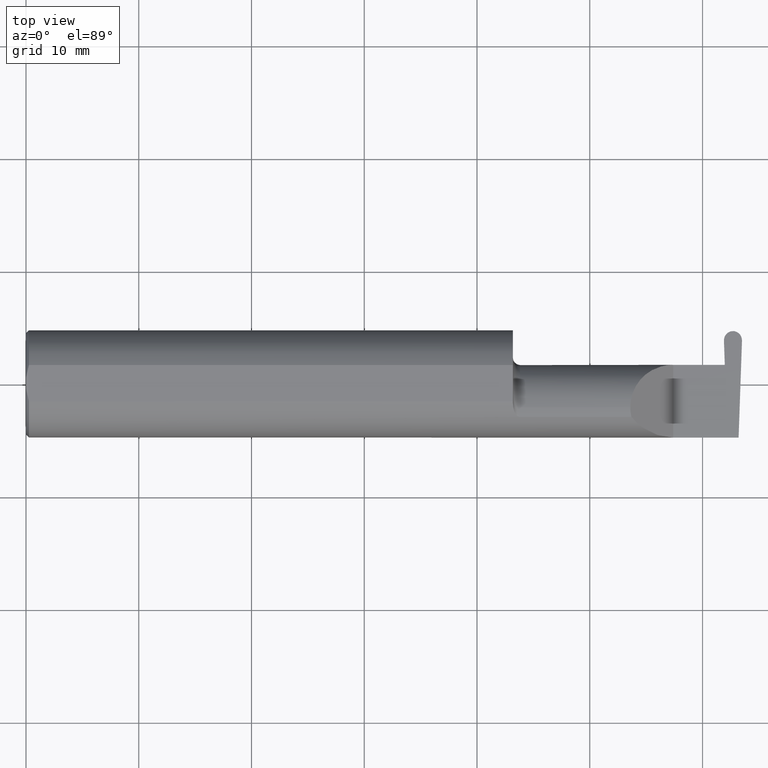
[diagram: clean part render]
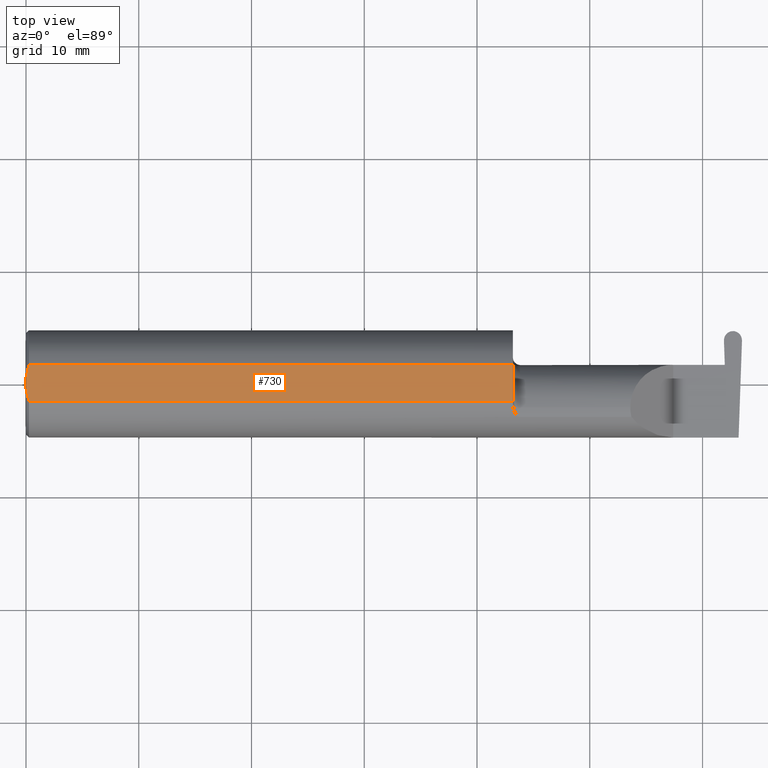
[diagram: same view with one face highlighted and labeled with its STEP entity id]
A machine part, top view. The second image highlights one B-rep face of the part: STEP entity #730.
In plain terms, the highlighted planar face has unit normal (0, 0, 1).
Its self-contained STEP definition (entity closure, byte-faithful):
#25 = DIRECTION ( 'NONE',  ( -0.000000000000000000, 1.000000000000000000, -0.000000000000000000 ) ) ;
#30 = CARTESIAN_POINT ( 'NONE',  ( 0.000000000000000000, 0.06325108694718235836, 0.1763499999999999235 ) ) ;
#60 = CARTESIAN_POINT ( 'NONE',  ( 0.01000000000000013205, -0.06325108694718235836, 0.1763499999999999235 ) ) ;
#68 = CARTESIAN_POINT ( 'NONE',  ( 1.699999999999999956, -0.06325108694718287183, 0.1763499999999999235 ) ) ;
#81 = AXIS2_PLACEMENT_3D ( 'NONE', #732, #528, #797 ) ;
#89 = LINE ( 'NONE', #30, #206 ) ;
#102 = EDGE_CURVE ( 'NONE', #233, #485, #704, .T. ) ;
#114 = CARTESIAN_POINT ( 'NONE',  ( 0.000000000000000000, -0.01880691362238934641, 0.1763499999999999235 ) ) ;
#149 = CARTESIAN_POINT ( 'NONE',  ( 1.699999999999999956, 0.1873499999999998500, 0.1763499999999999235 ) ) ;
#161 = EDGE_LOOP ( 'NONE', ( #312, #499, #648, #778, #592, #343 ) ) ;
#162 = CARTESIAN_POINT ( 'NONE',  ( 0.01000000000000013205, 0.06325108694718235836, 0.1763499999999999235 ) ) ;
#172 = FACE_OUTER_BOUND ( 'NONE', #161, .T. ) ;
#206 = VECTOR ( 'NONE', #642, 39.37007874015748143 ) ;
#217 = EDGE_CURVE ( 'NONE', #585, #513, #89, .T. ) ;
#222 = CARTESIAN_POINT ( 'NONE',  ( 0.001616639753276021213, 0.03405189565400638246, 0.1763499999999999235 ) ) ;
#233 = VERTEX_POINT ( 'NONE', #518 ) ;
#241 = EDGE_CURVE ( 'NONE', #485, #513, #643, .T. ) ;
#245 = CARTESIAN_POINT ( 'NONE',  ( 0.001595548104417008695, -0.03385300050298640367, 0.1763499999999999235 ) ) ;
#260 = VECTOR ( 'NONE', #395, 39.37007874015748143 ) ;
#271 = LINE ( 'NONE', #149, #647 ) ;
#275 = DIRECTION ( 'NONE',  ( 0.000000000000000000, 1.000000000000000000, 0.000000000000000000 ) ) ;
#298 = EDGE_CURVE ( 'NONE', #738, #233, #309, .T. ) ;
#302 = CARTESIAN_POINT ( 'NONE',  ( 0.01000000000000013205, -0.06325108694718235836, 0.1763499999999999235 ) ) ;
#309 = B_SPLINE_CURVE_WITH_KNOTS ( 'NONE', 3,
 ( #60, #412, #245, #114 ),
 .UNSPECIFIED., .F., .F.,
 ( 4, 4 ),
 ( 0.009771445421851331775, 0.01092787937989104369 ),
 .UNSPECIFIED. ) ;
#312 = ORIENTED_EDGE ( 'NONE', *, *, #550, .T. ) ;
#313 = CARTESIAN_POINT ( 'NONE',  ( 0.000000000000000000, 0.01880691362238934988, 0.1763499999999999235 ) ) ;
#343 = ORIENTED_EDGE ( 'NONE', *, *, #298, .F. ) ;
#395 = DIRECTION ( 'NONE',  ( 1.000000000000000000, 0.000000000000000000, 0.000000000000000000 ) ) ;
#412 = CARTESIAN_POINT ( 'NONE',  ( 0.005151108632379722968, -0.04888864921576022843, 0.1763499999999999235 ) ) ;
#421 = PLANE ( 'NONE',  #81 ) ;
#452 = VERTEX_POINT ( 'NONE', #68 ) ;
#454 = CARTESIAN_POINT ( 'NONE',  ( 0.01000000000000013205, 0.06325108694718235836, 0.1763499999999999235 ) ) ;
#485 = VERTEX_POINT ( 'NONE', #313 ) ;
#499 = ORIENTED_EDGE ( 'NONE', *, *, #533, .T. ) ;
#507 = CARTESIAN_POINT ( 'NONE',  ( 1.699999999999999956, 0.06325108694718235836, 0.1763499999999999235 ) ) ;
#513 = VERTEX_POINT ( 'NONE', #454 ) ;
#518 = CARTESIAN_POINT ( 'NONE',  ( 0.000000000000000000, -0.01880691362238934641, 0.1763499999999999235 ) ) ;
#522 = CARTESIAN_POINT ( 'NONE',  ( 0.000000000000000000, -0.06325108694718235836, 0.1763499999999999235 ) ) ;
#524 = CARTESIAN_POINT ( 'NONE',  ( 0.000000000000000000, 0.01880691362238934988, 0.1763499999999999235 ) ) ;
#528 = DIRECTION ( 'NONE',  ( 0.000000000000000000, 0.000000000000000000, 1.000000000000000000 ) ) ;
#533 = EDGE_CURVE ( 'NONE', #452, #585, #271, .T. ) ;
#550 = EDGE_CURVE ( 'NONE', #738, #452, #584, .T. ) ;
#577 = CARTESIAN_POINT ( 'NONE',  ( 0.000000000000000000, 0.1873499999999998500, 0.1763499999999999235 ) ) ;
#584 = LINE ( 'NONE', #522, #260 ) ;
#585 = VERTEX_POINT ( 'NONE', #507 ) ;
#592 = ORIENTED_EDGE ( 'NONE', *, *, #102, .F. ) ;
#642 = DIRECTION ( 'NONE',  ( -1.000000000000000000, -0.000000000000000000, -0.000000000000000000 ) ) ;
#643 = B_SPLINE_CURVE_WITH_KNOTS ( 'NONE', 3,
 ( #524, #222, #718, #162 ),
 .UNSPECIFIED., .F., .F.,
 ( 4, 4 ),
 ( 0.01188664626022242071, 0.01304646959483746725 ),
 .UNSPECIFIED. ) ;
#647 = VECTOR ( 'NONE', #275, 39.37007874015748143 ) ;
#648 = ORIENTED_EDGE ( 'NONE', *, *, #217, .T. ) ;
#704 = LINE ( 'NONE', #577, #783 ) ;
#718 = CARTESIAN_POINT ( 'NONE',  ( 0.005155213631852493573, 0.04890080824240055496, 0.1763499999999999235 ) ) ;
#730 = ADVANCED_FACE ( 'NONE', ( #172 ), #421, .T. ) ;
#732 = CARTESIAN_POINT ( 'NONE',  ( 2.876828993045917215, 0.1873499999999998500, 0.1763499999999999235 ) ) ;
#738 = VERTEX_POINT ( 'NONE', #302 ) ;
#778 = ORIENTED_EDGE ( 'NONE', *, *, #241, .F. ) ;
#783 = VECTOR ( 'NONE', #25, 39.37007874015748143 ) ;
#797 = DIRECTION ( 'NONE',  ( 1.000000000000000000, 0.000000000000000000, -0.000000000000000000 ) ) ;